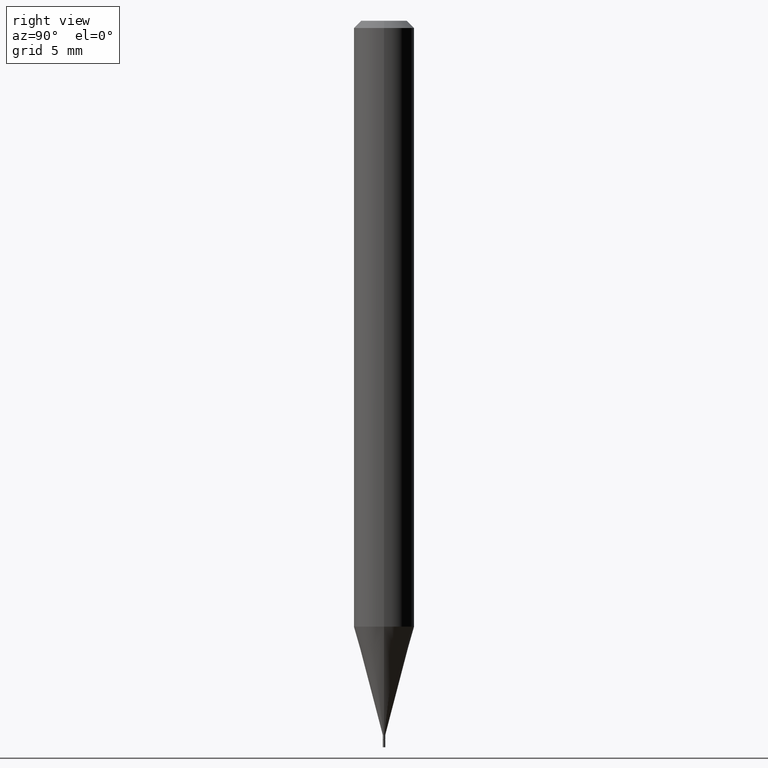
[diagram: clean part render]
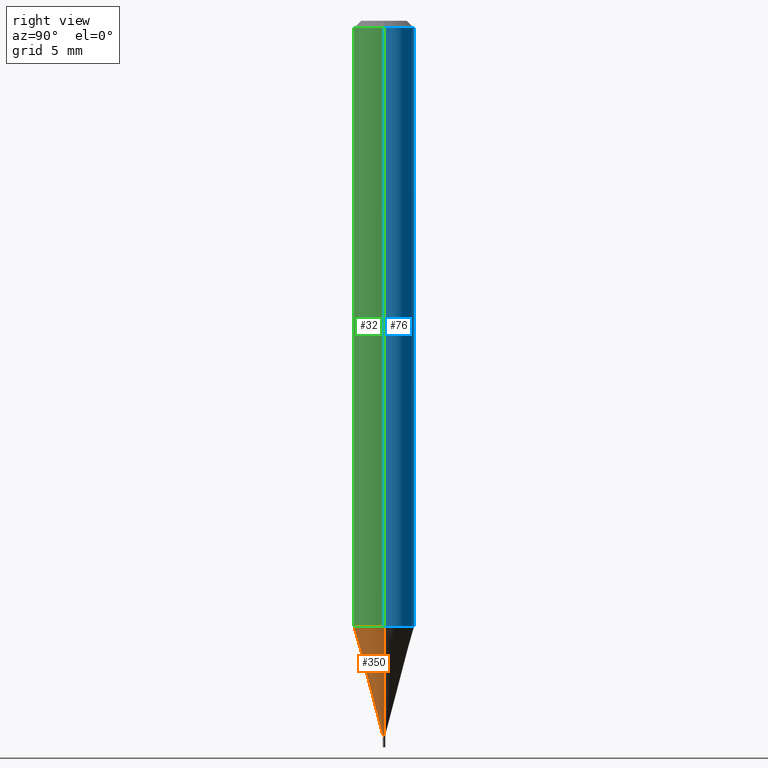
[diagram: same view with three faces highlighted in distinct colors, each labeled with its STEP entity id]
A machine part, right view with three faces highlighted in distinct colors.
Their STEP definitions:

[orange] entity #350 — the highlighted conical surface has half-angle 15 deg.
#9 = VECTOR ( 'NONE', #66, 39.37007874015748854 ) ;
#16 = CARTESIAN_POINT ( 'NONE',  ( 3.059469659142613603E-29, -4.368111829779168212E-15, -1.251076951545867955 ) ) ;
#18 = DIRECTION ( 'NONE',  ( -2.445468806185136597E-29, 3.491481338843145583E-15, 1.000000000000000000 ) ) ;
#20 = CARTESIAN_POINT ( 'NONE',  ( 0.002499999999999921989, -5.167392381487857245E-15, -1.475000000000000533 ) ) ;
#30 = FACE_OUTER_BOUND ( 'NONE', #311, .T. ) ;
#44 = ORIENTED_EDGE ( 'NONE', *, *, #410, .T. ) ;
#55 = ORIENTED_EDGE ( 'NONE', *, *, #458, .F. ) ;
#66 = DIRECTION ( 'NONE',  ( -0.2588190451025211281, 5.211531920934547886E-15, 0.9659258262890679791 ) ) ;
#87 = VERTEX_POINT ( 'NONE', #225 ) ;
#116 = CIRCLE ( 'NONE', #302, 0.06250000000000000000 ) ;
#120 = CARTESIAN_POINT ( 'NONE',  ( 3.607066489123077713E-29, -5.149934974793642209E-15, -1.475000000000000533 ) ) ;
#134 = VERTEX_POINT ( 'NONE', #463 ) ;
#150 = AXIS2_PLACEMENT_3D ( 'NONE', #120, #340, #269 ) ;
#162 = DIRECTION ( 'NONE',  ( 1.000000000000000000, -6.982962677686270655E-15, 0.000000000000000000 ) ) ;
#164 = ORIENTED_EDGE ( 'NONE', *, *, #258, .T. ) ;
#171 = CARTESIAN_POINT ( 'NONE',  ( 0.002499999999999921989, -5.167392381487857245E-15, -1.475000000000000533 ) ) ;
#173 = CARTESIAN_POINT ( 'NONE',  ( -0.002499999999999921989, -5.132171406399640083E-15, -1.475000000000000533 ) ) ;
#181 = VECTOR ( 'NONE', #421, 39.37007874015748854 ) ;
#211 = CARTESIAN_POINT ( 'NONE',  ( 3.607066489123077713E-29, -5.149934974793642209E-15, -1.475000000000000533 ) ) ;
#219 = EDGE_CURVE ( 'NONE', #87, #134, #116, .T. ) ;
#225 = CARTESIAN_POINT ( 'NONE',  ( -0.06250000000000000000, -3.924022619929106385E-15, -1.251076951545867955 ) ) ;
#257 = AXIS2_PLACEMENT_3D ( 'NONE', #211, #380, #349 ) ;
#258 = EDGE_CURVE ( 'NONE', #438, #362, #448, .T. ) ;
#262 = ORIENTED_EDGE ( 'NONE', *, *, #219, .F. ) ;
#269 = DIRECTION ( 'NONE',  ( 1.000000000000000000, -6.982962677686356641E-15, 0.000000000000000000 ) ) ;
#302 = AXIS2_PLACEMENT_3D ( 'NONE', #16, #18, #162 ) ;
#310 = CONICAL_SURFACE ( 'NONE', #257, 0.002499999999999921989, 0.2617993877991498519 ) ;
#311 = EDGE_LOOP ( 'NONE', ( #55, #164, #44, #262 ) ) ;
#340 = DIRECTION ( 'NONE',  ( -2.445468806185136597E-29, 3.491481338843145583E-15, 1.000000000000000000 ) ) ;
#349 = DIRECTION ( 'NONE',  ( 1.000000000000000000, -6.982962677686356641E-15, 0.000000000000000000 ) ) ;
#350 = ADVANCED_FACE ( 'NONE', ( #30 ), #310, .T. ) ;
#362 = VERTEX_POINT ( 'NONE', #20 ) ;
#380 = DIRECTION ( 'NONE',  ( -2.445468806185136597E-29, 3.491481338843145583E-15, 1.000000000000000000 ) ) ;
#387 = LINE ( 'NONE', #173, #9 ) ;
#410 = EDGE_CURVE ( 'NONE', #362, #134, #447, .T. ) ;
#421 = DIRECTION ( 'NONE',  ( 0.2588190451025211281, 1.565188264969622954E-15, 0.9659258262890679791 ) ) ;
#438 = VERTEX_POINT ( 'NONE', #455 ) ;
#447 = LINE ( 'NONE', #171, #181 ) ;
#448 = CIRCLE ( 'NONE', #150, 0.002499999999999921989 ) ;
#455 = CARTESIAN_POINT ( 'NONE',  ( -0.002499999999999921989, -4.528097013164372840E-15, -1.475000000000000533 ) ) ;
#458 = EDGE_CURVE ( 'NONE', #438, #87, #387, .T. ) ;
#463 = CARTESIAN_POINT ( 'NONE',  ( 0.06250000000000000000, -4.804546997134559881E-15, -1.251076951545867955 ) ) ;

[blue] entity #76 — the highlighted cylindrical surface (edge-blend (fillet) strip) has radius 1.5875 mm, axis along (-0, 0, 1).
#6 = FACE_OUTER_BOUND ( 'NONE', #418, .T. ) ;
#14 = ORIENTED_EDGE ( 'NONE', *, *, #446, .F. ) ;
#37 = DIRECTION ( 'NONE',  ( 1.000000000000000000, -6.982962677686266711E-15, 4.876176775795935793E-29 ) ) ;
#40 = DIRECTION ( 'NONE',  ( 1.000000000000000000, -6.982962677686270655E-15, 0.000000000000000000 ) ) ;
#60 = DIRECTION ( 'NONE',  ( -2.445468806185136597E-29, 3.491481338843145583E-15, 1.000000000000000000 ) ) ;
#76 = ADVANCED_FACE ( 'NONE', ( #6 ), #187, .T. ) ;
#87 = VERTEX_POINT ( 'NONE', #225 ) ;
#134 = VERTEX_POINT ( 'NONE', #463 ) ;
#140 = LINE ( 'NONE', #382, #422 ) ;
#152 = CARTESIAN_POINT ( 'NONE',  ( 0.06250000000000000000, -4.888073874380388472E-16, -0.01499999999999999944 ) ) ;
#168 = EDGE_CURVE ( 'NONE', #134, #87, #428, .T. ) ;
#174 = EDGE_CURVE ( 'NONE', #87, #443, #184, .T. ) ;
#184 = LINE ( 'NONE', #325, #415 ) ;
#187 = CYLINDRICAL_SURFACE ( 'NONE', #212, 0.06250000000000000000 ) ;
#207 = DIRECTION ( 'NONE',  ( -2.445468806185136877E-29, 3.491481338843145188E-15, 1.000000000000000000 ) ) ;
#208 = VERTEX_POINT ( 'NONE', #152 ) ;
#212 = AXIS2_PLACEMENT_3D ( 'NONE', #322, #399, #37 ) ;
#225 = CARTESIAN_POINT ( 'NONE',  ( -0.06250000000000000000, -3.924022619929106385E-15, -1.251076951545867955 ) ) ;
#229 = AXIS2_PLACEMENT_3D ( 'NONE', #254, #357, #40 ) ;
#240 = ORIENTED_EDGE ( 'NONE', *, *, #174, .T. ) ;
#254 = CARTESIAN_POINT ( 'NONE',  ( 3.059469659142613603E-29, -4.368111829779168212E-15, -1.251076951545867955 ) ) ;
#283 = CARTESIAN_POINT ( 'NONE',  ( -0.06250000000000000000, -1.766152815080845227E-15, -0.01499999999999999944 ) ) ;
#297 = ORIENTED_EDGE ( 'NONE', *, *, #451, .F. ) ;
#312 = DIRECTION ( 'NONE',  ( 1.000000000000000000, -6.982962677686266711E-15, 0.000000000000000000 ) ) ;
#322 = CARTESIAN_POINT ( 'NONE',  ( 0.000000000000000000, 0.000000000000000000, 0.000000000000000000 ) ) ;
#325 = CARTESIAN_POINT ( 'NONE',  ( -0.06250000000000000000, 4.440892098500626162E-16, -3.074334431409316114E-30 ) ) ;
#347 = ORIENTED_EDGE ( 'NONE', *, *, #168, .T. ) ;
#357 = DIRECTION ( 'NONE',  ( -2.445468806185136597E-29, 3.491481338843145583E-15, 1.000000000000000000 ) ) ;
#382 = CARTESIAN_POINT ( 'NONE',  ( 0.06250000000000000000, -4.364351673553916694E-16, 3.047610484872459871E-30 ) ) ;
#399 = DIRECTION ( 'NONE',  ( -2.445468806185136597E-29, 3.491481338843145583E-15, 1.000000000000000000 ) ) ;
#415 = VECTOR ( 'NONE', #466, 39.37007874015748143 ) ;
#418 = EDGE_LOOP ( 'NONE', ( #347, #240, #297, #14 ) ) ;
#422 = VECTOR ( 'NONE', #207, 39.37007874015748143 ) ;
#428 = CIRCLE ( 'NONE', #229, 0.06250000000000000000 ) ;
#443 = VERTEX_POINT ( 'NONE', #283 ) ;
#446 = EDGE_CURVE ( 'NONE', #134, #208, #140, .T. ) ;
#449 = CIRCLE ( 'NONE', #465, 0.06250000000000000000 ) ;
#451 = EDGE_CURVE ( 'NONE', #208, #443, #449, .T. ) ;
#453 = CARTESIAN_POINT ( 'NONE',  ( 3.668203209277705088E-31, -5.237222008264718399E-17, -0.01499999999999999944 ) ) ;
#463 = CARTESIAN_POINT ( 'NONE',  ( 0.06250000000000000000, -4.804546997134559881E-15, -1.251076951545867955 ) ) ;
#465 = AXIS2_PLACEMENT_3D ( 'NONE', #453, #60, #312 ) ;
#466 = DIRECTION ( 'NONE',  ( -2.445468806185136877E-29, 3.491481338843145188E-15, 1.000000000000000000 ) ) ;

[green] entity #32 — the highlighted cylindrical surface (edge-blend (fillet) strip) has radius 1.5875 mm, axis along (-0, 0, 1).
#16 = CARTESIAN_POINT ( 'NONE',  ( 3.059469659142613603E-29, -4.368111829779168212E-15, -1.251076951545867955 ) ) ;
#18 = DIRECTION ( 'NONE',  ( -2.445468806185136597E-29, 3.491481338843145583E-15, 1.000000000000000000 ) ) ;
#21 = EDGE_CURVE ( 'NONE', #443, #208, #384, .T. ) ;
#32 = ADVANCED_FACE ( 'NONE', ( #81 ), #328, .T. ) ;
#71 = CARTESIAN_POINT ( 'NONE',  ( 0.000000000000000000, 0.000000000000000000, 0.000000000000000000 ) ) ;
#81 = FACE_OUTER_BOUND ( 'NONE', #277, .T. ) ;
#87 = VERTEX_POINT ( 'NONE', #225 ) ;
#110 = CARTESIAN_POINT ( 'NONE',  ( 3.668203209277705088E-31, -5.237222008264718399E-17, -0.01499999999999999944 ) ) ;
#116 = CIRCLE ( 'NONE', #302, 0.06250000000000000000 ) ;
#134 = VERTEX_POINT ( 'NONE', #463 ) ;
#140 = LINE ( 'NONE', #382, #422 ) ;
#147 = ORIENTED_EDGE ( 'NONE', *, *, #174, .F. ) ;
#151 = ORIENTED_EDGE ( 'NONE', *, *, #446, .T. ) ;
#152 = CARTESIAN_POINT ( 'NONE',  ( 0.06250000000000000000, -4.888073874380388472E-16, -0.01499999999999999944 ) ) ;
#156 = AXIS2_PLACEMENT_3D ( 'NONE', #110, #222, #395 ) ;
#162 = DIRECTION ( 'NONE',  ( 1.000000000000000000, -6.982962677686270655E-15, 0.000000000000000000 ) ) ;
#174 = EDGE_CURVE ( 'NONE', #87, #443, #184, .T. ) ;
#184 = LINE ( 'NONE', #325, #415 ) ;
#207 = DIRECTION ( 'NONE',  ( -2.445468806185136877E-29, 3.491481338843145188E-15, 1.000000000000000000 ) ) ;
#208 = VERTEX_POINT ( 'NONE', #152 ) ;
#219 = EDGE_CURVE ( 'NONE', #87, #134, #116, .T. ) ;
#222 = DIRECTION ( 'NONE',  ( -2.445468806185136597E-29, 3.491481338843145583E-15, 1.000000000000000000 ) ) ;
#225 = CARTESIAN_POINT ( 'NONE',  ( -0.06250000000000000000, -3.924022619929106385E-15, -1.251076951545867955 ) ) ;
#277 = EDGE_LOOP ( 'NONE', ( #147, #373, #151, #411 ) ) ;
#283 = CARTESIAN_POINT ( 'NONE',  ( -0.06250000000000000000, -1.766152815080845227E-15, -0.01499999999999999944 ) ) ;
#302 = AXIS2_PLACEMENT_3D ( 'NONE', #16, #18, #162 ) ;
#325 = CARTESIAN_POINT ( 'NONE',  ( -0.06250000000000000000, 4.440892098500626162E-16, -3.074334431409316114E-30 ) ) ;
#328 = CYLINDRICAL_SURFACE ( 'NONE', #459, 0.06250000000000000000 ) ;
#330 = DIRECTION ( 'NONE',  ( -2.445468806185136597E-29, 3.491481338843145583E-15, 1.000000000000000000 ) ) ;
#373 = ORIENTED_EDGE ( 'NONE', *, *, #219, .T. ) ;
#382 = CARTESIAN_POINT ( 'NONE',  ( 0.06250000000000000000, -4.364351673553916694E-16, 3.047610484872459871E-30 ) ) ;
#384 = CIRCLE ( 'NONE', #156, 0.06250000000000000000 ) ;
#395 = DIRECTION ( 'NONE',  ( 1.000000000000000000, -6.982962677686266711E-15, 0.000000000000000000 ) ) ;
#411 = ORIENTED_EDGE ( 'NONE', *, *, #21, .F. ) ;
#415 = VECTOR ( 'NONE', #466, 39.37007874015748143 ) ;
#422 = VECTOR ( 'NONE', #207, 39.37007874015748143 ) ;
#430 = DIRECTION ( 'NONE',  ( 1.000000000000000000, -6.982962677686266711E-15, 4.876176775795935793E-29 ) ) ;
#443 = VERTEX_POINT ( 'NONE', #283 ) ;
#446 = EDGE_CURVE ( 'NONE', #134, #208, #140, .T. ) ;
#459 = AXIS2_PLACEMENT_3D ( 'NONE', #71, #330, #430 ) ;
#463 = CARTESIAN_POINT ( 'NONE',  ( 0.06250000000000000000, -4.804546997134559881E-15, -1.251076951545867955 ) ) ;
#466 = DIRECTION ( 'NONE',  ( -2.445468806185136877E-29, 3.491481338843145188E-15, 1.000000000000000000 ) ) ;